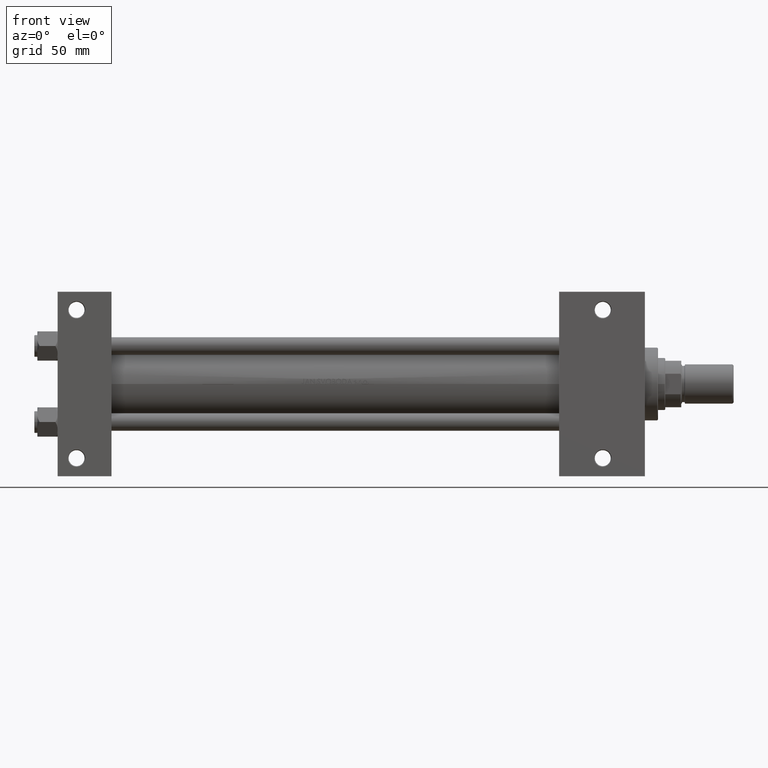
[diagram: clean part render]
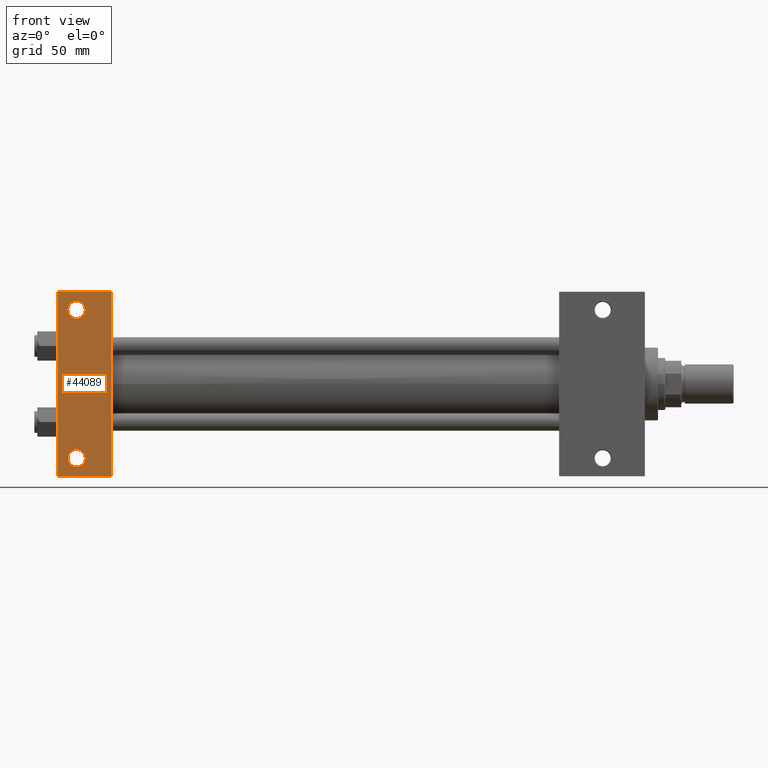
[diagram: same view with one face highlighted and labeled with its STEP entity id]
A machine part, front view. The second image highlights one B-rep face of the part: STEP entity #44089.
In plain terms, the highlighted planar face has unit normal (0, -1, -0).
Its self-contained STEP definition (entity closure, byte-faithful):
#934 = EDGE_CURVE ( 'NONE', #6259, #42555, #33130, .T. ) ;
#1490 = DIRECTION ( 'NONE',  ( 0.000000000000000000, 9.251858538542972814E-17, -1.000000000000000000 ) ) ;
#2251 = ORIENTED_EDGE ( 'NONE', *, *, #3753, .F. ) ;
#3753 = EDGE_CURVE ( 'NONE', #6259, #48422, #30791, .T. ) ;
#3937 = CARTESIAN_POINT ( 'NONE',  ( 0.000000000000000000, 37.49999999999999289, -37.50000000000000000 ) ) ;
#4299 = VECTOR ( 'NONE', #47154, 1000.000000000000000 ) ;
#4401 = CARTESIAN_POINT ( 'NONE',  ( 37.00000000000001421, 63.50000000000000000, -37.50000000000002132 ) ) ;
#4795 = FACE_BOUND ( 'NONE', #35633, .T. ) ;
#5077 = CARTESIAN_POINT ( 'NONE',  ( 7.000500000000061895, 50.99999999999995026, -37.50000000000000000 ) ) ;
#5550 = DIRECTION ( 'NONE',  ( 1.000000000000000000, 0.000000000000000000, 0.000000000000000000 ) ) ;
#6259 = VERTEX_POINT ( 'NONE', #22583 ) ;
#6511 = DIRECTION ( 'NONE',  ( 0.000000000000000000, -1.000000000000000000, -9.251858538542972814E-17 ) ) ;
#8185 = LINE ( 'NONE', #35766, #4299 ) ;
#8417 = AXIS2_PLACEMENT_3D ( 'NONE', #33926, #49348, #49833 ) ;
#8460 = CIRCLE ( 'NONE', #44802, 5.999499999999880373 ) ;
#10635 = AXIS2_PLACEMENT_3D ( 'NONE', #36601, #33317, #29294 ) ;
#11841 = VERTEX_POINT ( 'NONE', #5077 ) ;
#13620 = CARTESIAN_POINT ( 'NONE',  ( 37.00000000000000000, 37.49999999999999289, -37.50000000000000000 ) ) ;
#14383 = VECTOR ( 'NONE', #5550, 1000.000000000000000 ) ;
#15371 = ORIENTED_EDGE ( 'NONE', *, *, #42946, .T. ) ;
#16441 = CARTESIAN_POINT ( 'NONE',  ( 12.99999999999999822, -51.00000000000004263, -37.50000000000000711 ) ) ;
#18808 = VERTEX_POINT ( 'NONE', #49871 ) ;
#19409 = EDGE_LOOP ( 'NONE', ( #30813, #48091 ) ) ;
#21237 = EDGE_CURVE ( 'NONE', #18808, #33465, #24334, .T. ) ;
#21777 = VECTOR ( 'NONE', #42161, 1000.000000000000000 ) ;
#22112 = DIRECTION ( 'NONE',  ( 0.000000000000000000, 1.000000000000000000, 0.000000000000000000 ) ) ;
#22583 = CARTESIAN_POINT ( 'NONE',  ( 1.595073532467135441E-14, 63.50000000000000000, -37.50000000000002132 ) ) ;
#23095 = DIRECTION ( 'NONE',  ( -0.000000000000000000, -9.251858538542972814E-17, 1.000000000000000000 ) ) ;
#23701 = ORIENTED_EDGE ( 'NONE', *, *, #40367, .T. ) ;
#23850 = AXIS2_PLACEMENT_3D ( 'NONE', #13620, #1490, #28355 ) ;
#24334 = CIRCLE ( 'NONE', #32435, 5.999499999999880373 ) ;
#24583 = ORIENTED_EDGE ( 'NONE', *, *, #32611, .T. ) ;
#25081 = CARTESIAN_POINT ( 'NONE',  ( 7.000500000000117851, -51.00000000000004263, -37.50000000000000711 ) ) ;
#28103 = FACE_OUTER_BOUND ( 'NONE', #40416, .T. ) ;
#28355 = DIRECTION ( 'NONE',  ( 0.000000000000000000, 1.000000000000000000, 9.251858538542972814E-17 ) ) ;
#28838 = DIRECTION ( 'NONE',  ( 0.000000000000000000, 1.000000000000000000, 0.000000000000000000 ) ) ;
#29294 = DIRECTION ( 'NONE',  ( 0.000000000000000000, 1.000000000000000000, 0.000000000000000000 ) ) ;
#30276 = CIRCLE ( 'NONE', #8417, 5.999499999999935440 ) ;
#30791 = LINE ( 'NONE', #3937, #21777 ) ;
#30813 = ORIENTED_EDGE ( 'NONE', *, *, #35281, .T. ) ;
#32435 = AXIS2_PLACEMENT_3D ( 'NONE', #41328, #23095, #22112 ) ;
#32611 = EDGE_CURVE ( 'NONE', #42555, #49128, #49021, .T. ) ;
#33130 = LINE ( 'NONE', #36671, #14383 ) ;
#33317 = DIRECTION ( 'NONE',  ( -0.000000000000000000, -9.251858538542972814E-17, 1.000000000000000000 ) ) ;
#33465 = VERTEX_POINT ( 'NONE', #25081 ) ;
#33926 = CARTESIAN_POINT ( 'NONE',  ( 12.99999999999999822, 50.99999999999995026, -37.50000000000000000 ) ) ;
#35281 = EDGE_CURVE ( 'NONE', #11841, #45214, #46971, .T. ) ;
#35633 = EDGE_LOOP ( 'NONE', ( #15371, #43667 ) ) ;
#35766 = CARTESIAN_POINT ( 'NONE',  ( 3.977209754999747208E-16, -63.50000000000000000, -37.49999999999999289 ) ) ;
#36601 = CARTESIAN_POINT ( 'NONE',  ( 12.99999999999999822, 50.99999999999995026, -37.50000000000000000 ) ) ;
#36671 = CARTESIAN_POINT ( 'NONE',  ( 1.595073532467135441E-14, 63.50000000000000000, -37.50000000000002132 ) ) ;
#37885 = CARTESIAN_POINT ( 'NONE',  ( 37.00000000000000000, 37.49999999999999289, -37.50000000000000000 ) ) ;
#38649 = CARTESIAN_POINT ( 'NONE',  ( 18.99949999999993366, 50.99999999999995026, -37.50000000000000000 ) ) ;
#40051 = CARTESIAN_POINT ( 'NONE',  ( 3.977209754999747208E-16, -63.50000000000000000, -37.49999999999999289 ) ) ;
#40367 = EDGE_CURVE ( 'NONE', #49128, #48422, #8185, .T. ) ;
#40416 = EDGE_LOOP ( 'NONE', ( #2251, #45982, #24583, #23701 ) ) ;
#40448 = FACE_BOUND ( 'NONE', #19409, .T. ) ;
#41328 = CARTESIAN_POINT ( 'NONE',  ( 12.99999999999999822, -51.00000000000004263, -37.50000000000000711 ) ) ;
#42161 = DIRECTION ( 'NONE',  ( 0.000000000000000000, -1.000000000000000000, -9.251858538542972814E-17 ) ) ;
#42555 = VERTEX_POINT ( 'NONE', #4401 ) ;
#42766 = EDGE_CURVE ( 'NONE', #45214, #11841, #30276, .T. ) ;
#42946 = EDGE_CURVE ( 'NONE', #33465, #18808, #8460, .T. ) ;
#43667 = ORIENTED_EDGE ( 'NONE', *, *, #21237, .T. ) ;
#44089 = ADVANCED_FACE ( 'NONE', ( #40448, #4795, #28103 ), #48296, .T. ) ;
#44579 = VECTOR ( 'NONE', #6511, 1000.000000000000000 ) ;
#44802 = AXIS2_PLACEMENT_3D ( 'NONE', #16441, #48541, #28838 ) ;
#45214 = VERTEX_POINT ( 'NONE', #38649 ) ;
#45982 = ORIENTED_EDGE ( 'NONE', *, *, #934, .T. ) ;
#46971 = CIRCLE ( 'NONE', #10635, 5.999499999999935440 ) ;
#47154 = DIRECTION ( 'NONE',  ( -1.000000000000000000, -0.000000000000000000, -0.000000000000000000 ) ) ;
#47854 = CARTESIAN_POINT ( 'NONE',  ( 37.00000000000000000, -63.50000000000000000, -37.49999999999999289 ) ) ;
#48091 = ORIENTED_EDGE ( 'NONE', *, *, #42766, .T. ) ;
#48296 = PLANE ( 'NONE',  #23850 ) ;
#48422 = VERTEX_POINT ( 'NONE', #40051 ) ;
#48541 = DIRECTION ( 'NONE',  ( -0.000000000000000000, -9.251858538542972814E-17, 1.000000000000000000 ) ) ;
#49021 = LINE ( 'NONE', #37885, #44579 ) ;
#49128 = VERTEX_POINT ( 'NONE', #47854 ) ;
#49348 = DIRECTION ( 'NONE',  ( -0.000000000000000000, -9.251858538542972814E-17, 1.000000000000000000 ) ) ;
#49833 = DIRECTION ( 'NONE',  ( 0.000000000000000000, 1.000000000000000000, 0.000000000000000000 ) ) ;
#49871 = CARTESIAN_POINT ( 'NONE',  ( 18.99949999999987682, -51.00000000000004263, -37.50000000000000711 ) ) ;